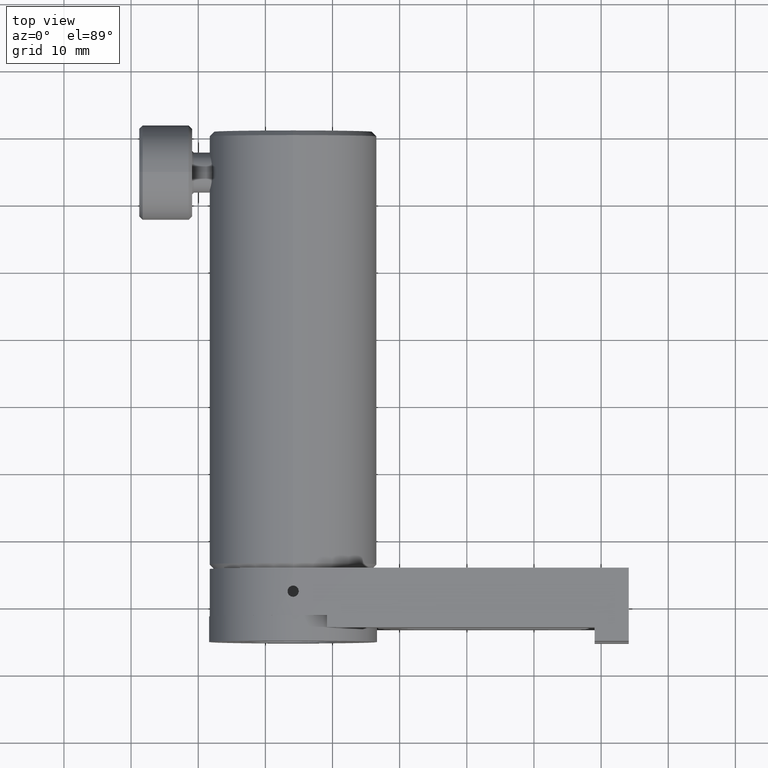
[diagram: clean part render]
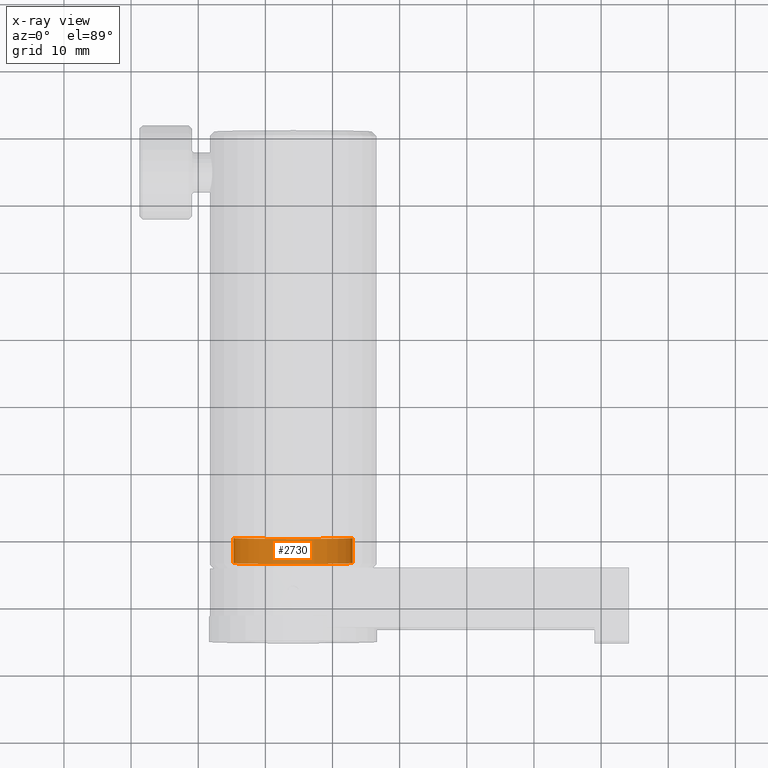
[diagram: x-ray — body ghosted, one internal face saturated and labeled with its STEP entity id]
A machine part, top view, then the same camera in x-ray: the body is ghosted and one INTERNAL B-rep face — a face not visible from any outside direction — is saturated and labeled: STEP entity #2730.
In plain terms, the highlighted cylindrical surface (partial cylindrical patch) has radius 8.89 mm, axis along (0, 1, 0).
Its self-contained STEP definition (entity closure, byte-faithful):
#97 = DIRECTION ( 'NONE',  ( -1.000000000000000000, 0.0000000000000000000, -3.552366734105304900E-014 ) ) ;
#118 = CYLINDRICAL_SURFACE ( 'NONE', #3131, 8.889999999999998800 ) ;
#156 = DIRECTION ( 'NONE',  ( -1.000000000000000000, 0.0000000000000000000, -3.552366734105304900E-014 ) ) ;
#660 = DIRECTION ( 'NONE',  ( -1.000000000000000000, 0.0000000000000000000, -3.552366734105304900E-014 ) ) ;
#674 = VECTOR ( 'NONE', #1200, 1000.000000000000000 ) ;
#690 = CARTESIAN_POINT ( 'NONE',  ( -4.766933356108617100, 6.587134787764891400, -1.700886306799096900E-013 ) ) ;
#715 = ORIENTED_EDGE ( 'NONE', *, *, #2542, .T. ) ;
#903 = VECTOR ( 'NONE', #1876, 1000.000000000000000 ) ;
#977 = DIRECTION ( 'NONE',  ( 0.0000000000000000000, 1.000000000000000000, 0.0000000000000000000 ) ) ;
#1190 = CARTESIAN_POINT ( 'NONE',  ( -4.766933356108617100, 10.82893478776489400, -1.700886306799096900E-013 ) ) ;
#1200 = DIRECTION ( 'NONE',  ( 0.0000000000000000000, 1.000000000000000000, 0.0000000000000000000 ) ) ;
#1245 = CARTESIAN_POINT ( 'NONE',  ( 4.123066643891380800, 10.32093478776489600, 1.457167719820518700E-013 ) ) ;
#1439 = CARTESIAN_POINT ( 'NONE',  ( 13.01306664389137800, 6.587134787764891400, 4.626108856484552500E-013 ) ) ;
#1476 = EDGE_CURVE ( 'NONE', #2788, #2742, #3621, .T. ) ;
#1570 = CARTESIAN_POINT ( 'NONE',  ( 4.123066643891380800, 6.587134787764891400, 1.457167719820518700E-013 ) ) ;
#1827 = VERTEX_POINT ( 'NONE', #1439 ) ;
#1876 = DIRECTION ( 'NONE',  ( 0.0000000000000000000, 1.000000000000000000, 0.0000000000000000000 ) ) ;
#1906 = CARTESIAN_POINT ( 'NONE',  ( 13.01306664389138000, 10.32093478776489600, 4.615221746440134300E-013 ) ) ;
#1924 = DIRECTION ( 'NONE',  ( 0.0000000000000000000, 1.000000000000000000, 0.0000000000000000000 ) ) ;
#2124 = DIRECTION ( 'NONE',  ( 0.0000000000000000000, 1.000000000000000000, 0.0000000000000000000 ) ) ;
#2210 = VERTEX_POINT ( 'NONE', #690 ) ;
#2220 = LINE ( 'NONE', #2970, #903 ) ;
#2307 = AXIS2_PLACEMENT_3D ( 'NONE', #1245, #2124, #660 ) ;
#2350 = AXIS2_PLACEMENT_3D ( 'NONE', #1570, #977, #97 ) ;
#2490 = CARTESIAN_POINT ( 'NONE',  ( -4.766933356108617100, 10.32093478776489600, -1.689999196754676700E-013 ) ) ;
#2542 = EDGE_CURVE ( 'NONE', #2210, #2742, #2592, .T. ) ;
#2592 = LINE ( 'NONE', #1190, #674 ) ;
#2599 = EDGE_CURVE ( 'NONE', #1827, #2788, #2220, .T. ) ;
#2644 = ORIENTED_EDGE ( 'NONE', *, *, #1476, .F. ) ;
#2681 = EDGE_CURVE ( 'NONE', #1827, #2210, #3051, .T. ) ;
#2730 = ADVANCED_FACE ( 'NONE', ( #2778 ), #118, .T. ) ;
#2742 = VERTEX_POINT ( 'NONE', #2490 ) ;
#2778 = FACE_OUTER_BOUND ( 'NONE', #2942, .T. ) ;
#2788 = VERTEX_POINT ( 'NONE', #1906 ) ;
#2816 = CARTESIAN_POINT ( 'NONE',  ( 4.123066643891380800, 10.82893478776489400, 1.457167719820518700E-013 ) ) ;
#2942 = EDGE_LOOP ( 'NONE', ( #3527, #2980, #715, #2644 ) ) ;
#2970 = CARTESIAN_POINT ( 'NONE',  ( 13.01306664389138000, 10.82893478776489400, 4.626108856484553500E-013 ) ) ;
#2980 = ORIENTED_EDGE ( 'NONE', *, *, #2681, .T. ) ;
#3051 = CIRCLE ( 'NONE', #2350, 8.889999999999998800 ) ;
#3131 = AXIS2_PLACEMENT_3D ( 'NONE', #2816, #1924, #156 ) ;
#3527 = ORIENTED_EDGE ( 'NONE', *, *, #2599, .F. ) ;
#3621 = CIRCLE ( 'NONE', #2307, 8.889999999999998800 ) ;